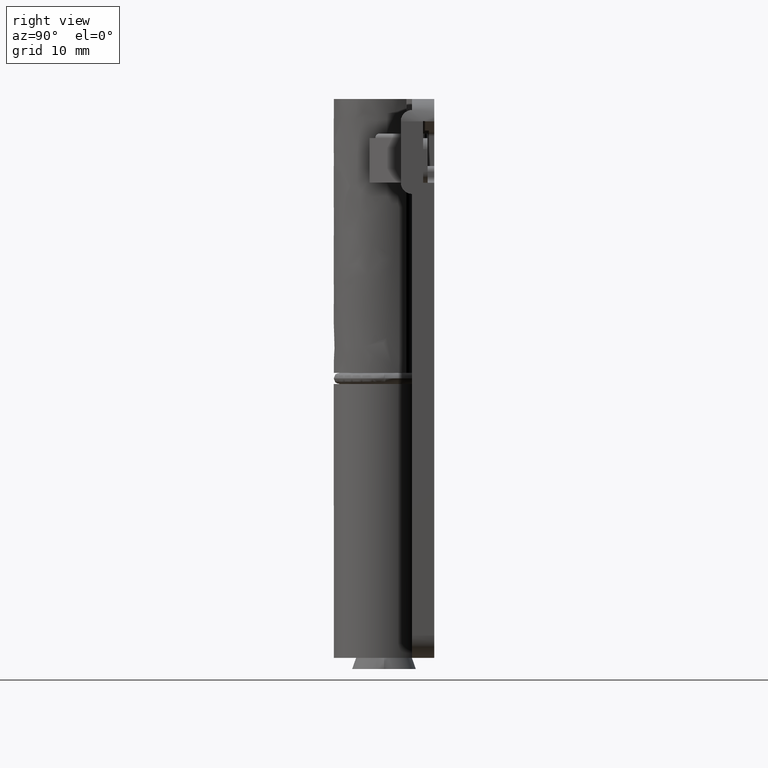
[diagram: clean part render]
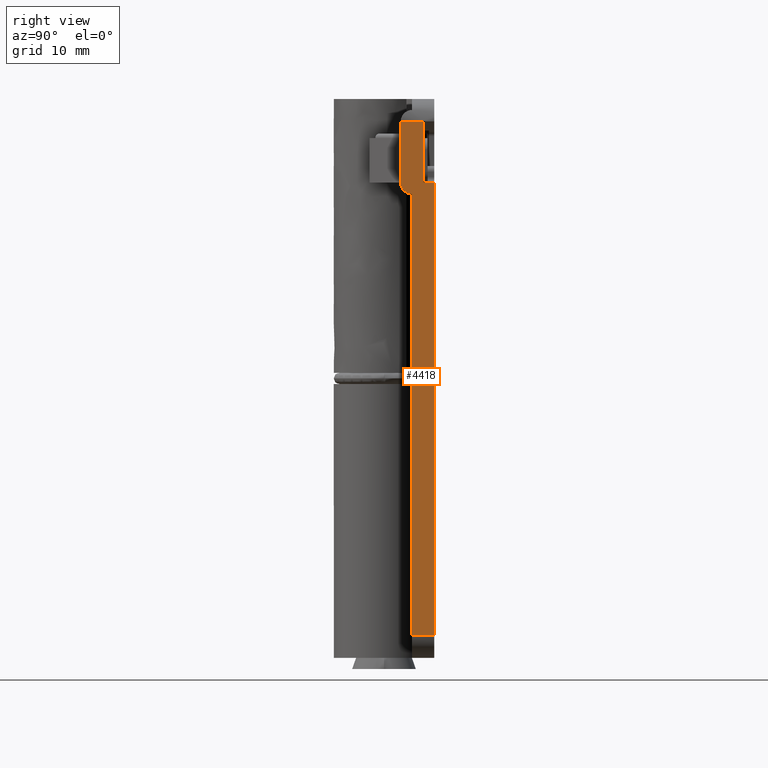
[diagram: same view with one face highlighted and labeled with its STEP entity id]
A machine part, right view. The second image highlights one B-rep face of the part: STEP entity #4418.
In plain terms, the highlighted face is a freeform B-spline surface patch.
Its self-contained STEP definition (entity closure, byte-faithful):
#3519=CARTESIAN_POINT('',(19.999999999990600,2.499999999935425,2.0));
#3520=VERTEX_POINT('',#3519);
#3541=CARTESIAN_POINT('',(19.999999999990600,4.500000000000000,2.0));
#3542=VERTEX_POINT('',#3541);
#3556=CARTESIAN_POINT('',(19.999999999990600,2.499999999935425,2.0));
#3557=CARTESIAN_POINT('',(19.999999999990600,4.500000000000000,2.0));
#3558=QUASI_UNIFORM_CURVE('',1,(#3556,#3557),.UNSPECIFIED.,.F.,.U.);
#3559=EDGE_CURVE('',#3520,#3542,#3558,.T.);
#3980=CARTESIAN_POINT('',(20.0,3.499999999989070,42.500000000000547));
#3981=VERTEX_POINT('',#3980);
#3987=CARTESIAN_POINT('',(20.0,4.500000000005170,42.500000000000547));
#3988=VERTEX_POINT('',#3987);
#3989=CARTESIAN_POINT('',(20.0,3.499999999989070,42.500000000000547));
#3990=CARTESIAN_POINT('',(20.0,4.500000000005170,42.500000000000547));
#3991=QUASI_UNIFORM_CURVE('',1,(#3989,#3990),.UNSPECIFIED.,.F.,.U.);
#3992=EDGE_CURVE('',#3981,#3988,#3991,.T.);
#4277=CARTESIAN_POINT('',(19.999999999990600,2.499999999935425,41.500000000000000));
#4278=VERTEX_POINT('',#4277);
#4279=CARTESIAN_POINT('',(19.999999999990600,2.499999999935425,2.0));
#4280=CARTESIAN_POINT('',(19.999999999990600,2.499999999935425,41.500000000000000));
#4281=QUASI_UNIFORM_CURVE('',1,(#4279,#4280),.UNSPECIFIED.,.F.,.U.);
#4282=EDGE_CURVE('',#3520,#4278,#4281,.T.);
#4369=CARTESIAN_POINT('',(19.999999999990600,1.350150005814324,50.297699910843093));
#4370=CARTESIAN_POINT('',(19.999999999990600,1.350150005814324,-0.297701144659218));
#4371=CARTESIAN_POINT('',(19.999999999990600,4.649850074657117,50.297699910843093));
#4372=CARTESIAN_POINT('',(19.999999999990600,4.649850074657117,-0.297701144659218));
#4373=B_SPLINE_SURFACE_WITH_KNOTS('',1,1,((#4369,#4371),(#4370,#4372)),.UNSPECIFIED.,.F.,.F.,.U.,(2,2),(2,2),(0.0,50.595401055502307),(0.0,3.299700068842793),.UNSPECIFIED.);
#4374=ORIENTED_EDGE('',*,*,#4282,.F.);
#4375=ORIENTED_EDGE('',*,*,#3559,.T.);
#4376=CARTESIAN_POINT('',(19.999999999990600,4.500000000000000,2.0));
#4377=CARTESIAN_POINT('',(20.0,4.500000000005170,42.500000000000547));
#4378=QUASI_UNIFORM_CURVE('',1,(#4376,#4377),.UNSPECIFIED.,.F.,.U.);
#4379=EDGE_CURVE('',#3542,#3988,#4378,.T.);
#4380=ORIENTED_EDGE('',*,*,#4379,.T.);
#4381=ORIENTED_EDGE('',*,*,#3992,.F.);
#4382=CARTESIAN_POINT('',(20.0,3.499999999989070,48.0));
#4383=VERTEX_POINT('',#4382);
#4384=CARTESIAN_POINT('',(20.0,3.499999999989070,42.500000000000547));
#4385=CARTESIAN_POINT('',(20.0,3.499999999989070,48.0));
#4386=QUASI_UNIFORM_CURVE('',1,(#4384,#4385),.UNSPECIFIED.,.F.,.U.);
#4387=EDGE_CURVE('',#3981,#4383,#4386,.T.);
#4388=ORIENTED_EDGE('',*,*,#4387,.T.);
#4389=CARTESIAN_POINT('',(19.999999999990699,1.500000000000000,48.0));
#4390=VERTEX_POINT('',#4389);
#4391=CARTESIAN_POINT('',(20.0,3.499999999989070,48.0));
#4392=CARTESIAN_POINT('',(19.999999999990699,1.500000000000000,48.0));
#4393=QUASI_UNIFORM_CURVE('',1,(#4391,#4392),.UNSPECIFIED.,.F.,.U.);
#4394=EDGE_CURVE('',#4383,#4390,#4393,.T.);
#4395=ORIENTED_EDGE('',*,*,#4394,.T.);
#4396=CARTESIAN_POINT('',(19.999999999990699,1.500000000000000,42.500000000000000));
#4397=VERTEX_POINT('',#4396);
#4398=CARTESIAN_POINT('',(19.999999999990699,1.500000000000000,42.500000000000000));
#4399=CARTESIAN_POINT('',(19.999999999990699,1.500000000000000,48.0));
#4400=QUASI_UNIFORM_CURVE('',1,(#4398,#4399),.UNSPECIFIED.,.F.,.U.);
#4401=EDGE_CURVE('',#4397,#4390,#4400,.T.);
#4402=ORIENTED_EDGE('',*,*,#4401,.F.);
#4403=CARTESIAN_POINT('',(19.999999999990699,1.500000000000000,42.500000000000000));
#4404=CARTESIAN_POINT('',(19.999999999990592,1.500000000000000,41.500000000000007));
#4405=CARTESIAN_POINT('',(19.999999999990600,2.500000000000000,41.500000000000000));
#4413=(BOUNDED_CURVE()B_SPLINE_CURVE(2,(#4403,#4404,#4405),.UNSPECIFIED.,.F.,.U.)CURVE()GEOMETRIC_REPRESENTATION_ITEM()QUASI_UNIFORM_CURVE()RATIONAL_B_SPLINE_CURVE((1.0,0.707106781186548,1.0))REPRESENTATION_ITEM(''));
#4414=EDGE_CURVE('',#4397,#4278,#4413,.T.);
#4415=ORIENTED_EDGE('',*,*,#4414,.T.);
#4416=EDGE_LOOP('',(#4374,#4375,#4380,#4381,#4388,#4395,#4402,#4415));
#4417=FACE_OUTER_BOUND('',#4416,.T.);
#4418=ADVANCED_FACE('',(#4417),#4373,.T.);